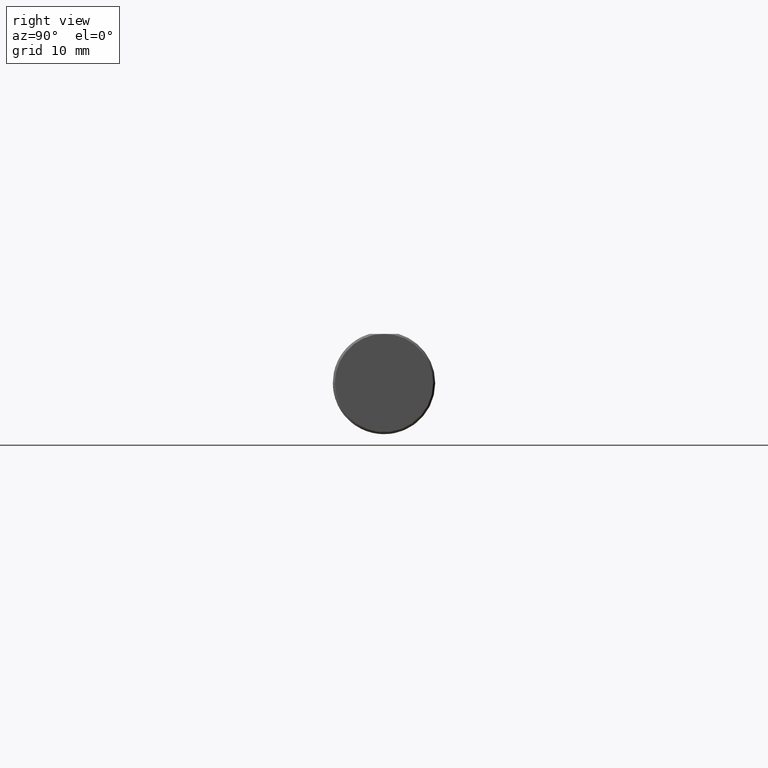
[diagram: clean part render]
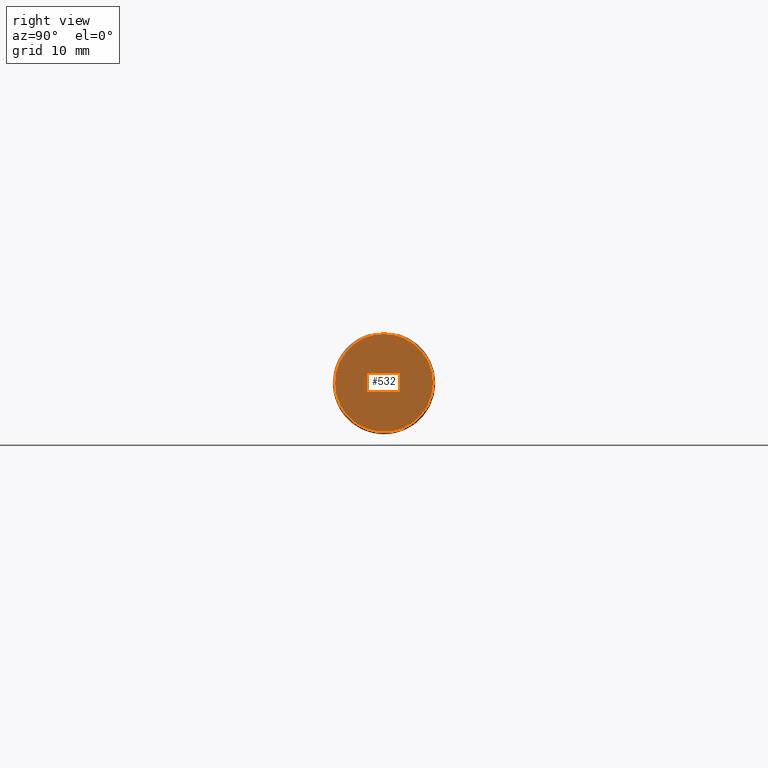
[diagram: same view with one face highlighted and labeled with its STEP entity id]
A machine part, right view. The second image highlights one B-rep face of the part: STEP entity #532.
In plain terms, the highlighted planar face has unit normal (1, 0, -0).
Its self-contained STEP definition (entity closure, byte-faithful):
#6 = EDGE_CURVE ( 'NONE', #586, #370, #164, .T. ) ;
#32 = CARTESIAN_POINT ( 'NONE',  ( 1.529890013834826959E-17, 3.673940397442054938E-16, 0.000000000000000000 ) ) ;
#37 = DIRECTION ( 'NONE',  ( -1.224646799147351728E-16, 1.000000000000000000, 0.000000000000000000 ) ) ;
#42 = PLANE ( 'NONE',  #568 ) ;
#46 = FACE_OUTER_BOUND ( 'NONE', #771, .T. ) ;
#140 = AXIS2_PLACEMENT_3D ( 'NONE', #594, #246, #578 ) ;
#164 = CIRCLE ( 'NONE', #775, 0.2398500000000003685 ) ;
#196 = DIRECTION ( 'NONE',  ( 1.000000000000000000, 1.224646799147351728E-16, -0.000000000000000000 ) ) ;
#234 = ORIENTED_EDGE ( 'NONE', *, *, #387, .T. ) ;
#243 = CIRCLE ( 'NONE', #881, 0.2398500000000003685 ) ;
#246 = DIRECTION ( 'NONE',  ( 1.000000000000000000, 1.224646799147351728E-16, -0.000000000000000000 ) ) ;
#260 = ORIENTED_EDGE ( 'NONE', *, *, #458, .T. ) ;
#268 = DIRECTION ( 'NONE',  ( -1.224646799147351728E-16, 1.000000000000000000, 0.000000000000000000 ) ) ;
#300 = CIRCLE ( 'NONE', #140, 0.2398500000000003685 ) ;
#318 = CARTESIAN_POINT ( 'NONE',  ( -5.793904011180277080E-33, 3.119473511487017836E-16, 0.2398500000000000631 ) ) ;
#352 = CARTESIAN_POINT ( 'NONE',  ( 1.529890013834826959E-17, 3.673940397442054938E-16, 0.000000000000000000 ) ) ;
#370 = VERTEX_POINT ( 'NONE', #541 ) ;
#387 = EDGE_CURVE ( 'NONE', #370, #892, #243, .T. ) ;
#393 = CARTESIAN_POINT ( 'NONE',  ( 1.529890013834831273E-17, 1.873574908490323911E-33, 0.000000000000000000 ) ) ;
#458 = EDGE_CURVE ( 'NONE', #892, #586, #300, .T. ) ;
#532 = ADVANCED_FACE ( 'NONE', ( #46 ), #42, .T. ) ;
#541 = CARTESIAN_POINT ( 'NONE',  ( -1.407425333920101154E-17, 0.2398500000000007570, 2.998547687712296871E-17 ) ) ;
#568 = AXIS2_PLACEMENT_3D ( 'NONE', #393, #910, #268 ) ;
#578 = DIRECTION ( 'NONE',  ( -1.224646799147351728E-16, 1.000000000000000000, 0.000000000000000000 ) ) ;
#586 = VERTEX_POINT ( 'NONE', #887 ) ;
#594 = CARTESIAN_POINT ( 'NONE',  ( 1.529890013834826959E-17, 3.673940397442054938E-16, 0.000000000000000000 ) ) ;
#646 = DIRECTION ( 'NONE',  ( -1.224646799147351728E-16, 1.000000000000000000, 0.000000000000000000 ) ) ;
#669 = DIRECTION ( 'NONE',  ( 1.000000000000000000, 1.224646799147351728E-16, -0.000000000000000000 ) ) ;
#771 = EDGE_LOOP ( 'NONE', ( #260, #909, #234 ) ) ;
#775 = AXIS2_PLACEMENT_3D ( 'NONE', #32, #669, #37 ) ;
#881 = AXIS2_PLACEMENT_3D ( 'NONE', #352, #196, #646 ) ;
#887 = CARTESIAN_POINT ( 'NONE',  ( 4.467205361589754765E-17, -0.2398500000000000076, 0.000000000000000000 ) ) ;
#892 = VERTEX_POINT ( 'NONE', #318 ) ;
#909 = ORIENTED_EDGE ( 'NONE', *, *, #6, .T. ) ;
#910 = DIRECTION ( 'NONE',  ( 1.000000000000000000, 1.224646799147351728E-16, -0.000000000000000000 ) ) ;